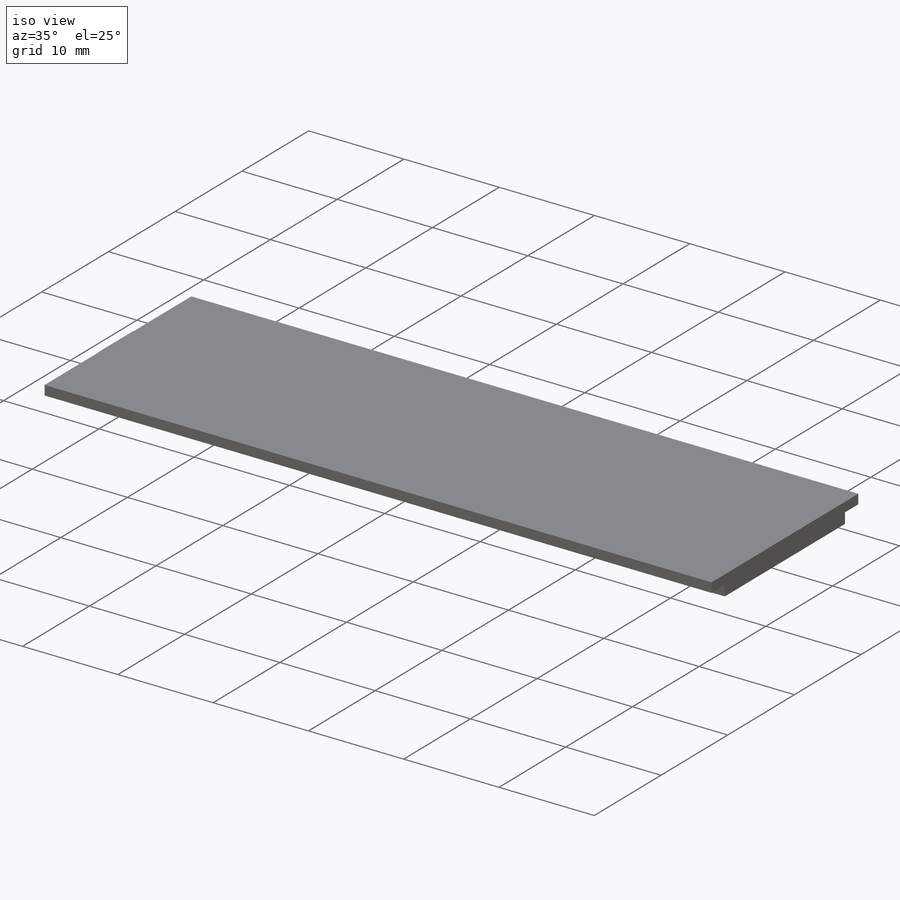
[diagram: iso view]
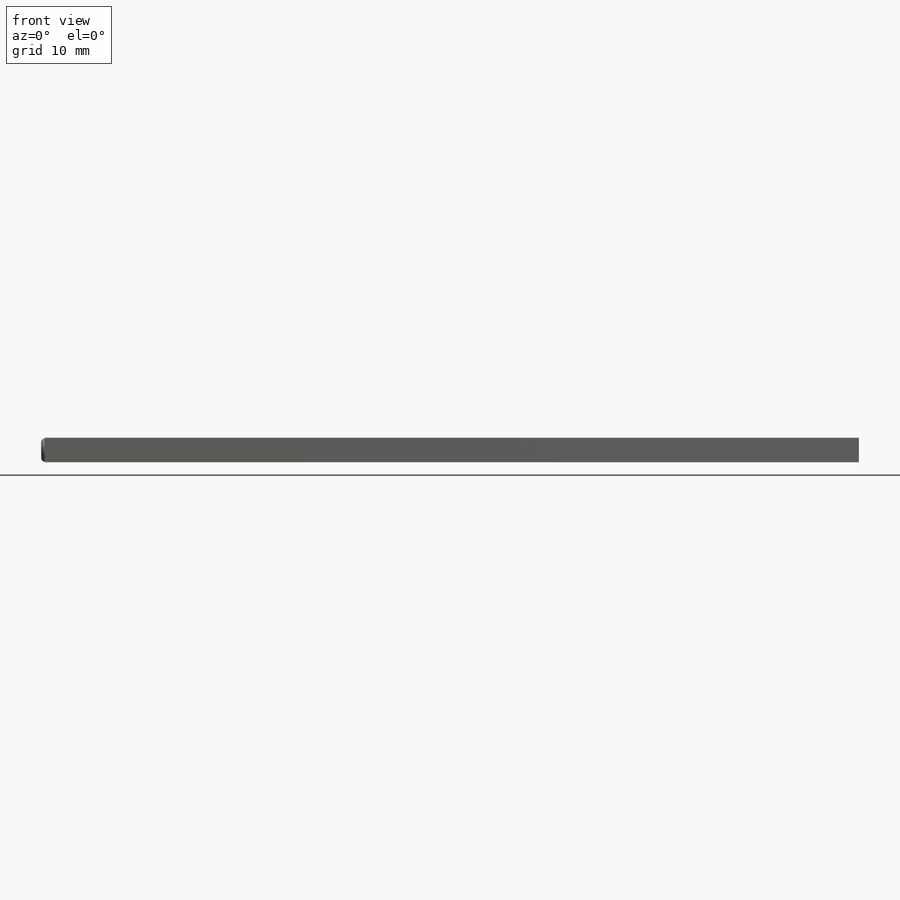
[diagram: front view]
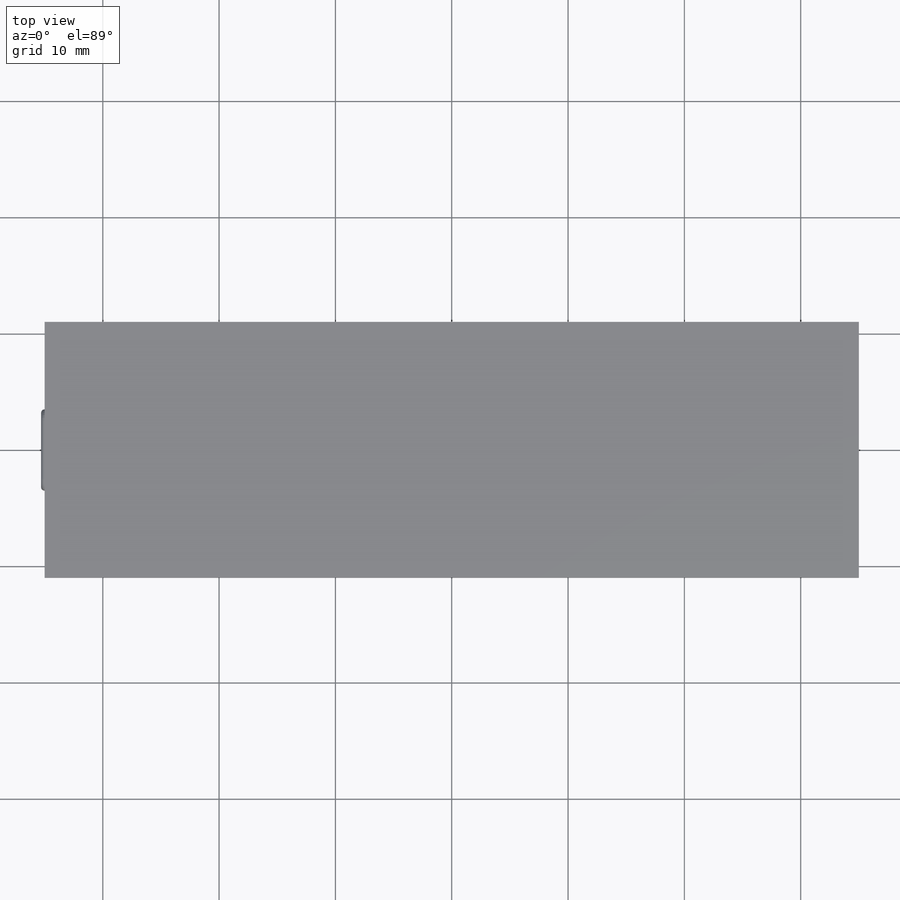
[diagram: top view]
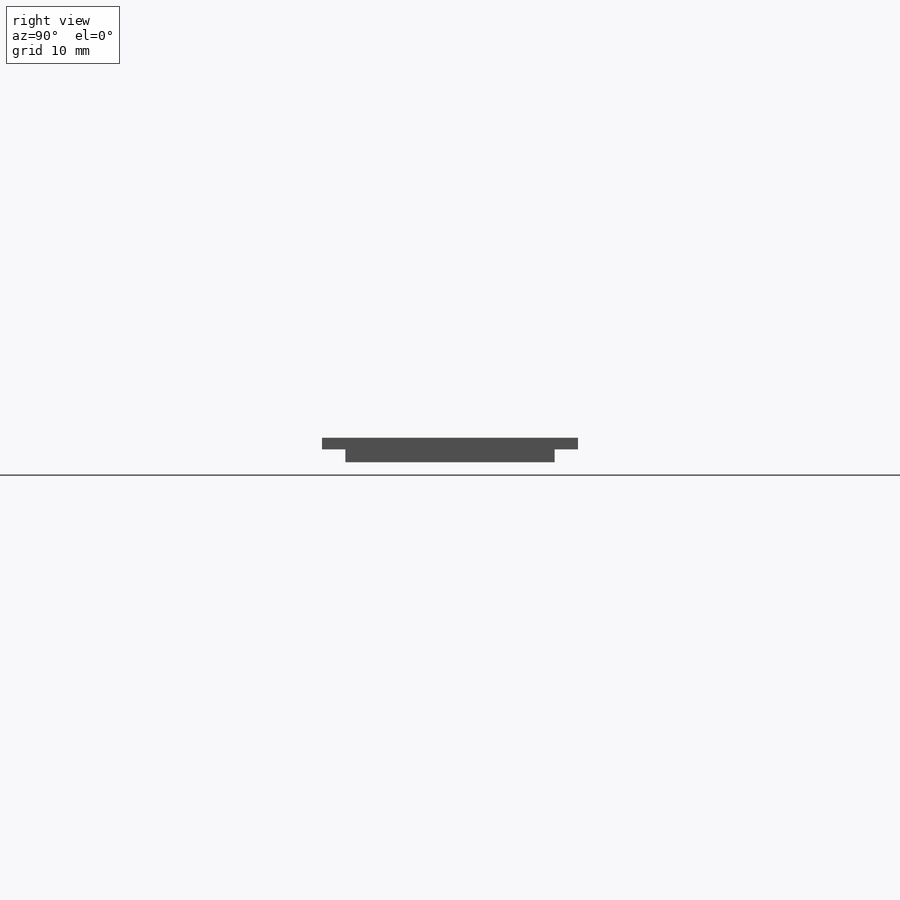
[diagram: right view]
SOLIDWORKS PART (.sldprt)
format: sldprt  version: not decoded by parser v0  size: 4,922,880 bytes
history: native  units: mm
features: sketch x5, extrude x4, material x1, fillet x1, cut_extrude x1 (+11 scaffold rows collapsed)
feature tree (23):
  scaffold x11  (default folders/planes/origin — collapsed)
  material  "Material <not specified>"
  sketch  "Sketch1"  dims[D1=22.0mm D2=70.0mm]
  extrude  "Boss-Extrude1"  Depth=1mm
  sketch  "Sketch5"  dims[D1=18.0mm]
  extrude  "Boss-Extrude2"  Depth=0.1mm
  sketch  "LCD_dots"  dims[c1.D1=18.0mm c1.D2=0.2mm c1.D3=0.3mm c1.D4=~0.017907mm c2.D3=0.3mm c2.D2=0.2mm c3.D3=0.3mm c3.D4=0.55mm c3.D5=0.65mm c3.D6=5.0 c3.D7=8.0 c3.D8=8.0 c3.D9=2.0]
  sketch  "Sketch6"  dims[D1=0.0mm]
  extrude  "Boss-Extrude3"  Depth=1mm
  sketch  "Sketch4"  dims[c1.D1=~0.898768mm c1.D2=1.0mm c2.D1=5.0mm]
  extrude  "Boss-Extrude4"  Depth=0.3mm
  fillet  "Fillet1"  Radius=0.3mm
  cut_extrude  "Cut-Extrude1"  Depth=0.1mm
decode coverage: 11 of 11 modeling features carry decoded parameters
note: ~ marks probable driven/reference dimensions
note: suppression state not decoded; provenance and decode notes live in map.json
